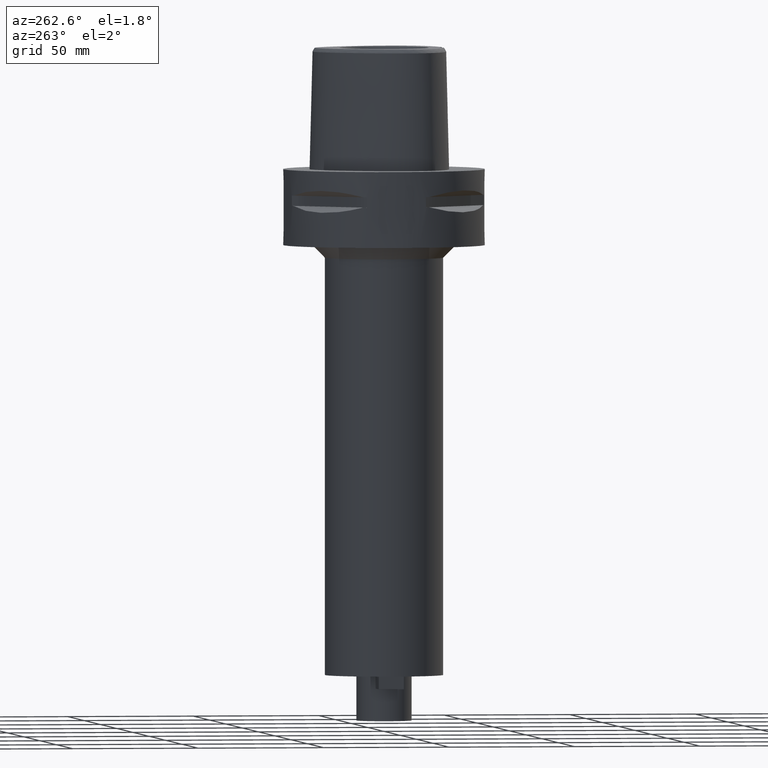
[diagram: clean part render]
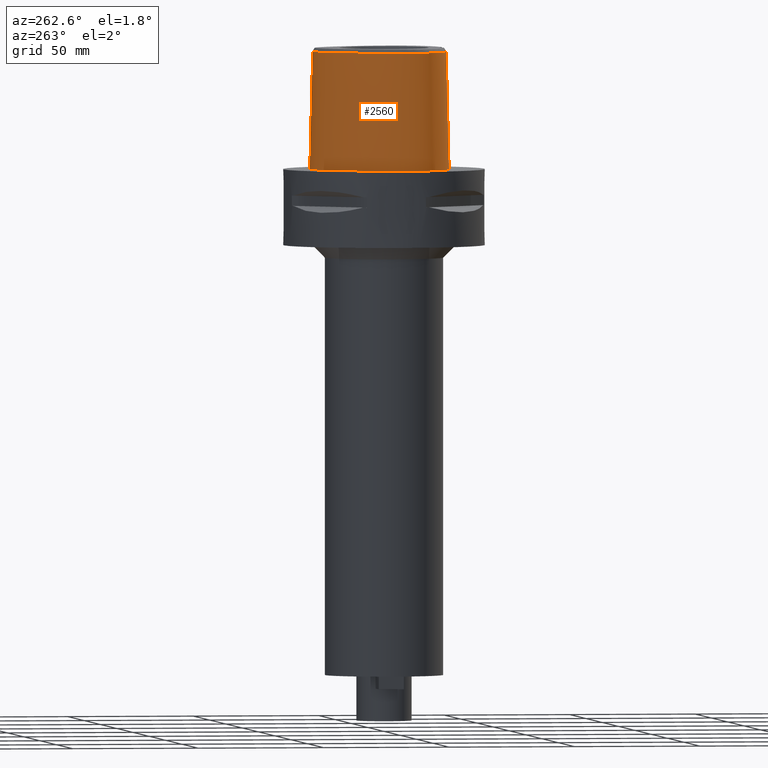
[diagram: same view with one face highlighted and labeled with its STEP entity id]
A machine part, auxiliary view. The second image highlights one B-rep face of the part: STEP entity #2560.
In plain terms, the highlighted face is a freeform B-spline surface patch.
Its self-contained STEP definition (entity closure, byte-faithful):
#179=CARTESIAN_POINT('',(-4.472216406693E0,-2.420008985674E1,4.652070903171E1));
#180=CARTESIAN_POINT('',(-5.732726370243E0,-2.407942649223E1,4.652067221453E1));
#181=CARTESIAN_POINT('',(-8.113625134210E0,-2.374453889640E1,4.652072683494E1));
#182=CARTESIAN_POINT('',(-1.116326100546E1,-2.305978433355E1,4.652071364128E1));
#183=CARTESIAN_POINT('',(-1.379118499003E1,-2.224815362253E1,4.652071745147E1));
#184=CARTESIAN_POINT('',(-1.612372978768E1,-2.131583541139E1,4.652071804497E1));
#185=CARTESIAN_POINT('',(-1.824311131223E1,-2.024347507007E1,4.652071848360E1));
#186=CARTESIAN_POINT('',(-2.009152495006E1,-1.906599145103E1,4.652071857965E1));
#187=CARTESIAN_POINT('',(-2.161308763471E1,-1.785790471409E1,4.652071946855E1));
#188=CARTESIAN_POINT('',(-2.286506850717E1,-1.662511219538E1,4.652071939668E1));
#189=CARTESIAN_POINT('',(-2.388068255904E1,-1.537598280222E1,4.652071596453E1));
#190=CARTESIAN_POINT('',(-2.470010135976E1,-1.409928842058E1,4.652071272641E1));
#191=CARTESIAN_POINT('',(-2.537291905169E1,-1.272525428828E1,4.652071563097E1));
#192=CARTESIAN_POINT('',(-2.592372739364E1,-1.118676896112E1,4.652071783157E1));
#193=CARTESIAN_POINT('',(-2.633771654227E1,-9.446738827456E0,4.652071622019E1));
#194=CARTESIAN_POINT('',(-2.659106290718E1,-7.484643397676E0,4.652071880187E1));
#195=CARTESIAN_POINT('',(-2.664578993309E1,-5.226264301439E0,4.652071683163E1));
#196=CARTESIAN_POINT('',(-2.647139518380E1,-2.844843846828E0,4.652071635655E1));
#197=CARTESIAN_POINT('',(-2.606566198119E1,-3.148421365396E-1,
4.652071855110E1));
#198=CARTESIAN_POINT('',(-2.539649419300E1,2.422893655820E0,4.652071109691E1));
#199=CARTESIAN_POINT('',(-2.438945936230E1,5.481184145331E0,4.652073027298E1));
#200=CARTESIAN_POINT('',(-2.292879426807E1,8.925154755268E0,4.652068741704E1));
#201=CARTESIAN_POINT('',(-2.107556831636E1,1.243002272404E1,4.652072946559E1));
#202=CARTESIAN_POINT('',(-1.893723201638E1,1.576318670716E1,4.652067535868E1));
#203=CARTESIAN_POINT('',(-1.667849621168E1,1.869800814589E1,4.652071854617E1));
#204=CARTESIAN_POINT('',(-1.453852855982E1,2.104613285535E1,4.652071602662E1));
#205=CARTESIAN_POINT('',(-1.252176656841E1,2.293844035409E1,4.652072578352E1));
#206=CARTESIAN_POINT('',(-1.054682804505E1,2.451361276559E1,4.652071459646E1));
#207=CARTESIAN_POINT('',(-8.570695418938E0,2.582463849619E1,4.652071830675E1));
#208=CARTESIAN_POINT('',(-6.636210590130E0,2.685406102779E1,4.652071576492E1));
#209=CARTESIAN_POINT('',(-4.810051035989E0,2.759523582218E1,4.652071900747E1));
#210=CARTESIAN_POINT('',(-3.110905577423E0,2.808188357834E1,4.652071713274E1));
#211=CARTESIAN_POINT('',(-1.507181293520E0,2.835513501463E1,4.652072116723E1));
#212=CARTESIAN_POINT('',(-5.022049857318E-1,2.841206021535E1,4.652071719450E1));
#213=CARTESIAN_POINT('',(-1.431900541400E-11,2.841206021535E1,
4.652071719451E1));
#225=CARTESIAN_POINT('',(-4.472216406693E0,-2.420008985674E1,4.652070903171E1));
#226=CARTESIAN_POINT('',(-4.487210721186E0,-2.421685468864E1,4.579601479726E1));
#227=CARTESIAN_POINT('',(-4.516393871198E0,-2.424985511122E1,4.434671166025E1));
#228=CARTESIAN_POINT('',(-4.559960929945E0,-2.430022581201E1,4.217314625867E1));
#229=CARTESIAN_POINT('',(-4.588866880071E0,-2.433440429495E1,4.072435065553E1));
#230=CARTESIAN_POINT('',(-4.602926399294E0,-2.435121850033E1,4.E1));
#235=DIRECTION('',(1.388127457203E-9,-2.499239851702E-2,-9.996876412242E-1));
#236=VECTOR('',#235,1.045326522127E1);
#237=CARTESIAN_POINT('',(-1.451045074373E-8,-2.457504746727E1,
4.000000005214E1));
#238=LINE('',#237,#236);
#242=CARTESIAN_POINT('',(1.372734075391E-14,-2.483629963748E1,2.955E1));
#243=CARTESIAN_POINT('',(-4.328177404210E-1,-2.483629963748E1,2.955E1));
#244=CARTESIAN_POINT('',(-1.298835403469E0,-2.482741526177E1,2.942558853514E1));
#245=CARTESIAN_POINT('',(-2.493401438475E0,-2.479254449818E1,2.888040469538E1));
#246=CARTESIAN_POINT('',(-3.487777742251E0,-2.475006786136E1,2.801854845219E1));
#247=CARTESIAN_POINT('',(-4.197348142775E0,-2.471874012541E1,2.691167119673E1));
#248=CARTESIAN_POINT('',(-4.565550575347E0,-2.471522206763E1,2.565418453948E1));
#249=CARTESIAN_POINT('',(-4.564663675612E0,-2.474826766690E1,2.434223028352E1));
#250=CARTESIAN_POINT('',(-4.197611180070E0,-2.481466062129E1,2.308955136275E1));
#251=CARTESIAN_POINT('',(-3.488592304723E0,-2.490132832479E1,2.198229712636E1));
#252=CARTESIAN_POINT('',(-2.493957366031E0,-2.498680598743E1,2.111970214255E1));
#253=CARTESIAN_POINT('',(-1.296549533646E0,-2.504883401397E1,2.057362212551E1));
#254=CARTESIAN_POINT('',(-4.317446225098E-1,-2.506378435149E1,2.045E1));
#255=CARTESIAN_POINT('',(-9.974733257610E-13,-2.506378435149E1,2.045E1));
#260=DIRECTION('',(-3.440669308446E-13,-2.499051295421E-2,-9.996876883619E-1));
#261=VECTOR('',#260,2.045638876829E1);
#262=CARTESIAN_POINT('',(-9.974733257610E-13,-2.506378435149E1,2.045E1));
#263=LINE('',#262,#261);
#323=CARTESIAN_POINT('',(2.338888328605E-11,2.9575E1,2.090920029711E-14));
#324=CARTESIAN_POINT('',(-5.239089352387E-1,2.9575E1,2.090920029711E-14));
#325=CARTESIAN_POINT('',(-1.595932923322E0,2.951628712895E1,0.E0));
#326=CARTESIAN_POINT('',(-3.267795642381E0,2.923881202707E1,0.E0));
#327=CARTESIAN_POINT('',(-5.029964536489E0,2.874892098859E1,0.E0));
#328=CARTESIAN_POINT('',(-6.894766785683E0,2.801467500634E1,0.E0));
#329=CARTESIAN_POINT('',(-8.867487153186E0,2.699998117672E1,0.E0));
#330=CARTESIAN_POINT('',(-1.096015682822E1,2.565523817500E1,0.E0));
#331=CARTESIAN_POINT('',(-1.316463669714E1,2.393109543561E1,0.E0));
#332=CARTESIAN_POINT('',(-1.545179770434E1,2.178844859975E1,0.E0));
#333=CARTESIAN_POINT('',(-1.777193498938E1,1.920631354865E1,0.E0));
#334=CARTESIAN_POINT('',(-2.004333158431E1,1.620733699666E1,0.E0));
#335=CARTESIAN_POINT('',(-2.215477532900E1,1.288364935835E1,0.E0));
#336=CARTESIAN_POINT('',(-2.399236940640E1,9.392446074848E0,0.E0));
#337=CARTESIAN_POINT('',(-2.546734328413E1,5.925680865115E0,0.E0));
#338=CARTESIAN_POINT('',(-2.655879390961E1,2.617249938604E0,0.E0));
#339=CARTESIAN_POINT('',(-2.728441557030E1,-4.438398407176E-1,0.E0));
#340=CARTESIAN_POINT('',(-2.768770565119E1,-3.226018237671E0,0.E0));
#341=CARTESIAN_POINT('',(-2.781635532464E1,-5.725328027071E0,0.E0));
#342=CARTESIAN_POINT('',(-2.771708086684E1,-7.951202965461E0,0.E0));
#343=CARTESIAN_POINT('',(-2.742731525438E1,-9.943401084185E0,0.E0));
#344=CARTESIAN_POINT('',(-2.697725030186E1,-1.172003063745E1,0.E0));
#345=CARTESIAN_POINT('',(-2.638350292978E1,-1.332386633010E1,0.E0));
#346=CARTESIAN_POINT('',(-2.564312381604E1,-1.479771981910E1,0.E0));
#347=CARTESIAN_POINT('',(-2.474765867438E1,-1.616267566599E1,0.E0));
#348=CARTESIAN_POINT('',(-2.366561436494E1,-1.747304048931E1,0.E0));
#349=CARTESIAN_POINT('',(-2.236654800976E1,-1.874403294521E1,0.E0));
#350=CARTESIAN_POINT('',(-2.079506024312E1,-1.999224247955E1,0.E0));
#351=CARTESIAN_POINT('',(-1.892034535500E1,-2.119617701925E1,0.E0));
#352=CARTESIAN_POINT('',(-1.670032717373E1,-2.233671715241E1,0.E0));
#353=CARTESIAN_POINT('',(-1.409645771092E1,-2.338284761430E1,0.E0));
#354=CARTESIAN_POINT('',(-1.108228515808E1,-2.429189365722E1,0.E0));
#355=CARTESIAN_POINT('',(-7.667636040905E0,-2.500758000522E1,0.E0));
#356=CARTESIAN_POINT('',(-3.941099326144E0,-2.546666643114E1,
-1.265812974277E-14));
#357=CARTESIAN_POINT('',(-1.338405627439E0,-2.5575E1,2.727447897162E-14));
#358=CARTESIAN_POINT('',(-8.035840225430E-12,-2.5575E1,2.727447897162E-14));
#999=DIRECTION('',(8.103080597395E-13,2.499051293983E-2,-9.996876883622E-1));
#1000=VECTOR('',#999,4.653525069487E1);
#1001=CARTESIAN_POINT('',(-1.431900541400E-11,2.841206021535E1,
4.652071719451E1));
#1002=LINE('',#1001,#1000);
#1016=CARTESIAN_POINT('',(-1.451045074373E-8,-2.457504746727E1,
4.000000005214E1));
#1017=CARTESIAN_POINT('',(-5.124223382063E-1,-2.457504746706E1,
4.000000005214E1));
#1018=CARTESIAN_POINT('',(-1.536621703185E0,-2.455890147822E1,
3.999999997567E1));
#1019=CARTESIAN_POINT('',(-3.071957833090E0,-2.448406989332E1,
4.000000000695E1));
#1020=CARTESIAN_POINT('',(-4.092927957720E0,-2.440134255033E1,4.E1));
#1021=CARTESIAN_POINT('',(-4.602926399294E0,-2.435121850033E1,4.E1));
#1637=CARTESIAN_POINT('',(-4.602965878456E0,-2.435127227233E1,4.E1));
#1638=VERTEX_POINT('',#1637);
#1639=VERTEX_POINT('',#225);
#1640=CARTESIAN_POINT('',(-1.431900541400E-11,2.841206021535E1,
4.652071719451E1));
#1641=VERTEX_POINT('',#1640);
#1642=VERTEX_POINT('',#323);
#1643=VERTEX_POINT('',#358);
#1644=VERTEX_POINT('',#1016);
#1645=CARTESIAN_POINT('',(1.372734075387E-14,-2.483629963748E1,2.955E1));
#1646=VERTEX_POINT('',#1645);
#1647=VERTEX_POINT('',#255);
#2435=CARTESIAN_POINT('',(9.115101685104E-1,2.956851175922E1,
-9.304144460610E-1));
#2436=CARTESIAN_POINT('',(8.850788452242E-1,2.916624662730E1,1.519676928566E1));
#2437=CARTESIAN_POINT('',(8.586475219380E-1,2.876398149538E1,3.132395301739E1));
#2438=CARTESIAN_POINT('',(8.322161986518E-1,2.836171636347E1,4.745113674911E1));
#2439=CARTESIAN_POINT('',(6.077626423266E-1,2.958843421290E1,
-9.304144460610E-1));
#2440=CARTESIAN_POINT('',(5.902542492502E-1,2.918556701667E1,1.519676928566E1));
#2441=CARTESIAN_POINT('',(5.727458561737E-1,2.878269982044E1,3.132395301739E1));
#2442=CARTESIAN_POINT('',(5.552374630973E-1,2.837983262421E1,4.745113674911E1));
#2443=CARTESIAN_POINT('',(-7.475778413967E-1,2.963225228651E1,
-9.304144460610E-1));
#2444=CARTESIAN_POINT('',(-7.257524951815E-1,2.922811260900E1,
1.519676928566E1));
#2445=CARTESIAN_POINT('',(-7.039271489663E-1,2.882397293150E1,
3.132395301739E1));
#2446=CARTESIAN_POINT('',(-6.821018027510E-1,2.841983325399E1,
4.745113674911E1));
#2447=CARTESIAN_POINT('',(-3.154109046339E0,2.936302093299E1,
-9.304144460610E-1));
#2448=CARTESIAN_POINT('',(-3.067023401322E0,2.896669976113E1,1.519676928566E1));
#2449=CARTESIAN_POINT('',(-2.979937756305E0,2.857037858927E1,3.132395301739E1));
#2450=CARTESIAN_POINT('',(-2.892852111288E0,2.817405741742E1,4.745113674911E1));
#2451=CARTESIAN_POINT('',(-6.271543170214E0,2.837237220450E1,
-9.304144460610E-1));
#2452=CARTESIAN_POINT('',(-6.114741929578E0,2.799897534722E1,1.519676928566E1));
#2453=CARTESIAN_POINT('',(-5.957940688942E0,2.762557848993E1,3.132395301739E1));
#2454=CARTESIAN_POINT('',(-5.801139448307E0,2.725218163265E1,4.745113674911E1));
#2455=CARTESIAN_POINT('',(-9.316733116865E0,2.681182150574E1,
-9.304144460610E-1));
#2456=CARTESIAN_POINT('',(-9.105791472507E0,2.646675915626E1,1.519676928566E1));
#2457=CARTESIAN_POINT('',(-8.894849828149E0,2.612169680678E1,3.132395301739E1));
#2458=CARTESIAN_POINT('',(-8.683908183792E0,2.577663445729E1,4.745113674911E1));
#2459=CARTESIAN_POINT('',(-1.323332856242E1,2.406149249846E1,
-9.304144460610E-1));
#2460=CARTESIAN_POINT('',(-1.296695410838E1,2.375598710855E1,1.519676928566E1));
#2461=CARTESIAN_POINT('',(-1.270057965434E1,2.345048171864E1,3.132395301739E1));
#2462=CARTESIAN_POINT('',(-1.243420520030E1,2.314497632873E1,4.745113674911E1));
#2463=CARTESIAN_POINT('',(-1.777103258569E1,1.953703864398E1,
-9.304144460610E-1));
#2464=CARTESIAN_POINT('',(-1.745811263668E1,1.927961881497E1,1.519676928566E1));
#2465=CARTESIAN_POINT('',(-1.714519268768E1,1.902219898595E1,3.132395301739E1));
#2466=CARTESIAN_POINT('',(-1.683227273867E1,1.876477915694E1,4.745113674911E1));
#2467=CARTESIAN_POINT('',(-2.235908247701E1,1.290902243012E1,
-9.304144460610E-1));
#2468=CARTESIAN_POINT('',(-2.200846694196E1,1.270659197466E1,1.519676928566E1));
#2469=CARTESIAN_POINT('',(-2.165785140690E1,1.250416151919E1,3.132395301739E1));
#2470=CARTESIAN_POINT('',(-2.130723587185E1,1.230173106373E1,4.745113674911E1));
#2471=CARTESIAN_POINT('',(-2.523075706111E1,6.836210430278E0,
-9.304144460610E-1));
#2472=CARTESIAN_POINT('',(-2.485610466618E1,6.683875472138E0,1.519676928566E1));
#2473=CARTESIAN_POINT('',(-2.448145227126E1,6.531540513999E0,3.132395301739E1));
#2474=CARTESIAN_POINT('',(-2.410679987633E1,6.379205555860E0,4.745113674911E1));
#2475=CARTESIAN_POINT('',(-2.679474625699E1,1.906447387135E0,
-9.304144460610E-1));
#2476=CARTESIAN_POINT('',(-2.640443227609E1,1.802817676793E0,1.519676928566E1));
#2477=CARTESIAN_POINT('',(-2.601411829520E1,1.699187966452E0,3.132395301739E1));
#2478=CARTESIAN_POINT('',(-2.562380431430E1,1.595558256111E0,4.745113674911E1));
#2479=CARTESIAN_POINT('',(-2.756041892165E1,-1.762105663879E0,
-9.304144460610E-1));
#2480=CARTESIAN_POINT('',(-2.716099300221E1,-1.823107489983E0,
1.519676928566E1));
#2481=CARTESIAN_POINT('',(-2.676156708278E1,-1.884109316088E0,
3.132395301739E1));
#2482=CARTESIAN_POINT('',(-2.636214116335E1,-1.945111142192E0,
4.745113674911E1));
#2483=CARTESIAN_POINT('',(-2.787808443023E1,-5.337383714088E0,
-9.304144460610E-1));
#2484=CARTESIAN_POINT('',(-2.747379252865E1,-5.347524336568E0,
1.519676928566E1));
#2485=CARTESIAN_POINT('',(-2.706950062708E1,-5.357664959049E0,
3.132395301739E1));
#2486=CARTESIAN_POINT('',(-2.666520872551E1,-5.367805581530E0,
4.745113674911E1));
#2487=CARTESIAN_POINT('',(-2.770696775825E1,-8.754869100737E0,
-9.304144460610E-1));
#2488=CARTESIAN_POINT('',(-2.730517728125E1,-8.703986979628E0,
1.519676928566E1));
#2489=CARTESIAN_POINT('',(-2.690338680425E1,-8.653104858519E0,
3.132395301739E1));
#2490=CARTESIAN_POINT('',(-2.650159632724E1,-8.602222737411E0,
4.745113674911E1));
#2491=CARTESIAN_POINT('',(-2.712297207907E1,-1.141745865519E1,
-9.304144460610E-1));
#2492=CARTESIAN_POINT('',(-2.673375371939E1,-1.130662581940E1,
1.519676928566E1));
#2493=CARTESIAN_POINT('',(-2.634453535971E1,-1.119579298360E1,
3.132395301739E1));
#2494=CARTESIAN_POINT('',(-2.595531700003E1,-1.108496014781E1,
4.745113674911E1));
#2495=CARTESIAN_POINT('',(-2.637046814469E1,-1.340391019788E1,
-9.304144460610E-1));
#2496=CARTESIAN_POINT('',(-2.600056142134E1,-1.324168030949E1,
1.519676928566E1));
#2497=CARTESIAN_POINT('',(-2.563065469799E1,-1.307945042109E1,
3.132395301739E1));
#2498=CARTESIAN_POINT('',(-2.526074797464E1,-1.291722053269E1,
4.745113674911E1));
#2499=CARTESIAN_POINT('',(-2.565830880097E1,-1.481383149321E1,
-9.304144460610E-1));
#2500=CARTESIAN_POINT('',(-2.530843715982E1,-1.461183300677E1,
1.519676928566E1));
#2501=CARTESIAN_POINT('',(-2.495856551867E1,-1.440983452033E1,
3.132395301739E1));
#2502=CARTESIAN_POINT('',(-2.460869387752E1,-1.420783603389E1,
4.745113674911E1));
#2503=CARTESIAN_POINT('',(-2.479336081387E1,-1.613554022407E1,
-9.304144460610E-1));
#2504=CARTESIAN_POINT('',(-2.446791224571E1,-1.589630654868E1,
1.519676928566E1));
#2505=CARTESIAN_POINT('',(-2.414246367755E1,-1.565707287330E1,
3.132395301739E1));
#2506=CARTESIAN_POINT('',(-2.381701510939E1,-1.541783919792E1,
4.745113674911E1));
#2507=CARTESIAN_POINT('',(-2.344929528100E1,-1.778045351895E1,
-9.304144460610E-1));
#2508=CARTESIAN_POINT('',(-2.315870206014E1,-1.749879695094E1,
1.519676928566E1));
#2509=CARTESIAN_POINT('',(-2.286810883928E1,-1.721714038294E1,
3.132395301739E1));
#2510=CARTESIAN_POINT('',(-2.257751561843E1,-1.693548381494E1,
4.745113674911E1));
#2511=CARTESIAN_POINT('',(-2.143542293201E1,-1.961750339070E1,
-9.304144460610E-1));
#2512=CARTESIAN_POINT('',(-2.119046240018E1,-1.929498368099E1,
1.519676928566E1));
#2513=CARTESIAN_POINT('',(-2.094550186836E1,-1.897246397128E1,
3.132395301739E1));
#2514=CARTESIAN_POINT('',(-2.070054133653E1,-1.864994426157E1,
4.745113674911E1));
#2515=CARTESIAN_POINT('',(-1.856135208360E1,-2.147443746623E1,
-9.304144460610E-1));
#2516=CARTESIAN_POINT('',(-1.836798847567E1,-2.111924013493E1,
1.519676928566E1));
#2517=CARTESIAN_POINT('',(-1.817462486775E1,-2.076404280364E1,
3.132395301739E1));
#2518=CARTESIAN_POINT('',(-1.798126125983E1,-2.040884547234E1,
4.745113674911E1));
#2519=CARTESIAN_POINT('',(-1.530623779572E1,-2.298697010116E1,
-9.304144460610E-1));
#2520=CARTESIAN_POINT('',(-1.515935282619E1,-2.261055605613E1,
1.519676928566E1));
#2521=CARTESIAN_POINT('',(-1.501246785665E1,-2.223414201109E1,
3.132395301739E1));
#2522=CARTESIAN_POINT('',(-1.486558288712E1,-2.185772796606E1,
4.745113674911E1));
#2523=CARTESIAN_POINT('',(-1.174634101464E1,-2.415815461020E1,
-9.304144460610E-1));
#2524=CARTESIAN_POINT('',(-1.164093424334E1,-2.376831845014E1,
1.519676928566E1));
#2525=CARTESIAN_POINT('',(-1.153552747204E1,-2.337848229009E1,
3.132395301739E1));
#2526=CARTESIAN_POINT('',(-1.143012070073E1,-2.298864613003E1,
4.745113674911E1));
#2527=CARTESIAN_POINT('',(-6.695047936398E0,-2.526858194544E1,
-9.304144460610E-1));
#2528=CARTESIAN_POINT('',(-6.639625078473E0,-2.486795322438E1,
1.519676928566E1));
#2529=CARTESIAN_POINT('',(-6.584202220548E0,-2.446732450332E1,
3.132395301739E1));
#2530=CARTESIAN_POINT('',(-6.528779362624E0,-2.406669578225E1,
4.745113674911E1));
#2531=CARTESIAN_POINT('',(-2.393548608011E0,-2.562160468760E1,
-9.304144460610E-1));
#2532=CARTESIAN_POINT('',(-2.373852718974E0,-2.521827346415E1,
1.519676928566E1));
#2533=CARTESIAN_POINT('',(-2.354156829936E0,-2.481494224069E1,
3.132395301739E1));
#2534=CARTESIAN_POINT('',(-2.334460940898E0,-2.441161101724E1,
4.745113674911E1));
#2535=CARTESIAN_POINT('',(5.689259951137E-1,-2.559577895833E1,
-9.304144460610E-1));
#2536=CARTESIAN_POINT('',(5.642418785482E-1,-2.519264543912E1,
1.519676928566E1));
#2537=CARTESIAN_POINT('',(5.595577619827E-1,-2.478951191991E1,
3.132395301739E1));
#2538=CARTESIAN_POINT('',(5.548736454172E-1,-2.438637840070E1,
4.745113674911E1));
#2539=CARTESIAN_POINT('',(8.532670503849E-1,-2.559082387453E1,
-9.304144460610E-1));
#2540=CARTESIAN_POINT('',(8.462420190717E-1,-2.518772737247E1,
1.519676928566E1));
#2541=CARTESIAN_POINT('',(8.392169877585E-1,-2.478463087041E1,
3.132395301739E1));
#2542=CARTESIAN_POINT('',(8.321919564454E-1,-2.438153436834E1,
4.745113674911E1));
#2543=B_SPLINE_SURFACE_WITH_KNOTS('',3,3,((#2435,#2436,#2437,#2438),(#2439,
#2440,#2441,#2442),(#2443,#2444,#2445,#2446),(#2447,#2448,#2449,#2450),(#2451,
#2452,#2453,#2454),(#2455,#2456,#2457,#2458),(#2459,#2460,#2461,#2462),(#2463,
#2464,#2465,#2466),(#2467,#2468,#2469,#2470),(#2471,#2472,#2473,#2474),(#2475,
#2476,#2477,#2478),(#2479,#2480,#2481,#2482),(#2483,#2484,#2485,#2486),(#2487,
#2488,#2489,#2490),(#2491,#2492,#2493,#2494),(#2495,#2496,#2497,#2498),(#2499,
#2500,#2501,#2502),(#2503,#2504,#2505,#2506),(#2507,#2508,#2509,#2510),(#2511,
#2512,#2513,#2514),(#2515,#2516,#2517,#2518),(#2519,#2520,#2521,#2522),(#2523,
#2524,#2525,#2526),(#2527,#2528,#2529,#2530),(#2531,#2532,#2533,#2534),(#2535,
#2536,#2537,#2538),(#2539,#2540,#2541,#2542)),.UNSPECIFIED.,.F.,.F.,.F.,(4,1,1,
1,1,1,1,1,1,1,1,1,1,1,1,1,1,1,1,1,1,1,1,1,4),(4,4),(-1.204223939035E-2,0.E0,
4.166666666696E-2,8.333333333359E-2,1.250000000002E-1,1.666666666669E-1,
2.500000000002E-1,3.333333333334E-1,4.166666666668E-1,4.583333333333E-1,5.E-1,
5.416666666667E-1,5.833333333333E-1,6.249999999999E-1,6.458333333332E-1,
6.666666666666E-1,6.874999999999E-1,7.083333333332E-1,7.499999999999E-1,
7.916666666665E-1,8.333333333331E-1,8.749999999998E-1,9.166666666665E-1,1.E0,
1.008851807893E0),(5.970200285532E-9,9.999996955198E-1),.UNSPECIFIED.);
#2545=ORIENTED_EDGE('',*,*,#2544,.F.);
#2547=ORIENTED_EDGE('',*,*,#2546,.F.);
#2548=ORIENTED_EDGE('',*,*,#2428,.F.);
#2549=ORIENTED_EDGE('',*,*,#1857,.T.);
#2551=ORIENTED_EDGE('',*,*,#2550,.F.);
#2553=ORIENTED_EDGE('',*,*,#2552,.T.);
#2555=ORIENTED_EDGE('',*,*,#2554,.T.);
#2557=ORIENTED_EDGE('',*,*,#2556,.T.);
#2558=EDGE_LOOP('',(#2545,#2547,#2548,#2549,#2551,#2553,#2555,#2557));
#2559=FACE_OUTER_BOUND('',#2558,.F.);
#214=B_SPLINE_CURVE_WITH_KNOTS('',3,(#179,#180,#181,#182,#183,#184,#185,#186,
#187,#188,#189,#190,#191,#192,#193,#194,#195,#196,#197,#198,#199,#200,#201,#202,
#203,#204,#205,#206,#207,#208,#209,#210,#211,#212,#213),.UNSPECIFIED.,.F.,.F.,
(4,1,1,1,1,1,1,1,1,1,1,1,1,1,1,1,1,1,1,1,1,1,1,1,1,1,1,1,1,1,1,1,4),(0.E0,
3.125E-2,6.25E-2,9.375E-2,1.25E-1,1.5625E-1,1.875E-1,2.1875E-1,2.5E-1,2.8125E-1,
3.125E-1,3.4375E-1,3.75E-1,4.0625E-1,4.375E-1,4.6875E-1,5.E-1,5.3125E-1,
5.625E-1,5.9375E-1,6.25E-1,6.5625E-1,6.875E-1,7.1875E-1,7.5E-1,7.8125E-1,
8.125E-1,8.4375E-1,8.75E-1,9.0625E-1,9.375E-1,9.6875E-1,1.E0),.UNSPECIFIED.);
#231=B_SPLINE_CURVE_WITH_KNOTS('',3,(#225,#226,#227,#228,#229,#230),
.UNSPECIFIED.,.F.,.F.,(4,1,1,4),(0.E0,3.333333333333E-1,6.666666666667E-1,1.E0),
.UNSPECIFIED.);
#256=B_SPLINE_CURVE_WITH_KNOTS('',3,(#242,#243,#244,#245,#246,#247,#248,#249,
#250,#251,#252,#253,#254,#255),.UNSPECIFIED.,.F.,.F.,(4,1,1,1,1,1,1,1,1,1,1,4),(
0.E0,9.090909090909E-2,1.818181818182E-1,2.727272727273E-1,3.636363636364E-1,
4.545454545455E-1,5.454545454545E-1,6.363636363636E-1,7.272727272727E-1,
8.181818181818E-1,9.090909090909E-1,1.E0),.UNSPECIFIED.);
#359=B_SPLINE_CURVE_WITH_KNOTS('',3,(#323,#324,#325,#326,#327,#328,#329,#330,
#331,#332,#333,#334,#335,#336,#337,#338,#339,#340,#341,#342,#343,#344,#345,#346,
#347,#348,#349,#350,#351,#352,#353,#354,#355,#356,#357,#358),.UNSPECIFIED.,.F.,
.F.,(4,1,1,1,1,1,1,1,1,1,1,1,1,1,1,1,1,1,1,1,1,1,1,1,1,1,1,1,1,1,1,1,1,4),(0.E0,
3.030303030303E-2,6.060606060606E-2,9.090909090909E-2,1.212121212121E-1,
1.515151515152E-1,1.818181818182E-1,2.121212121212E-1,2.424242424242E-1,
2.727272727273E-1,3.030303030303E-1,3.333333333333E-1,3.636363636364E-1,
3.939393939394E-1,4.242424242424E-1,4.545454545455E-1,4.848484848485E-1,
5.151515151515E-1,5.454545454545E-1,5.757575757576E-1,6.060606060606E-1,
6.363636363636E-1,6.666666666667E-1,6.969696969697E-1,7.272727272727E-1,
7.575757575758E-1,7.878787878788E-1,8.181818181818E-1,8.484848484848E-1,
8.787878787879E-1,9.090909090909E-1,9.393939393939E-1,9.696969696970E-1,1.E0),
.UNSPECIFIED.);
#1022=B_SPLINE_CURVE_WITH_KNOTS('',3,(#1016,#1017,#1018,#1019,#1020,#1021),
.UNSPECIFIED.,.F.,.F.,(4,1,1,4),(0.E0,3.333333333333E-1,6.666666666667E-1,1.E0),
.UNSPECIFIED.);
#1857=EDGE_CURVE('',#1639,#1638,#231,.T.);
#2428=EDGE_CURVE('',#1639,#1641,#214,.T.);
#2544=EDGE_CURVE('',#1642,#1643,#359,.T.);
#2546=EDGE_CURVE('',#1641,#1642,#1002,.T.);
#2550=EDGE_CURVE('',#1644,#1638,#1022,.T.);
#2552=EDGE_CURVE('',#1644,#1646,#238,.T.);
#2554=EDGE_CURVE('',#1646,#1647,#256,.T.);
#2556=EDGE_CURVE('',#1647,#1643,#263,.T.);
#2560=ADVANCED_FACE('',(#2559),#2543,.T.);